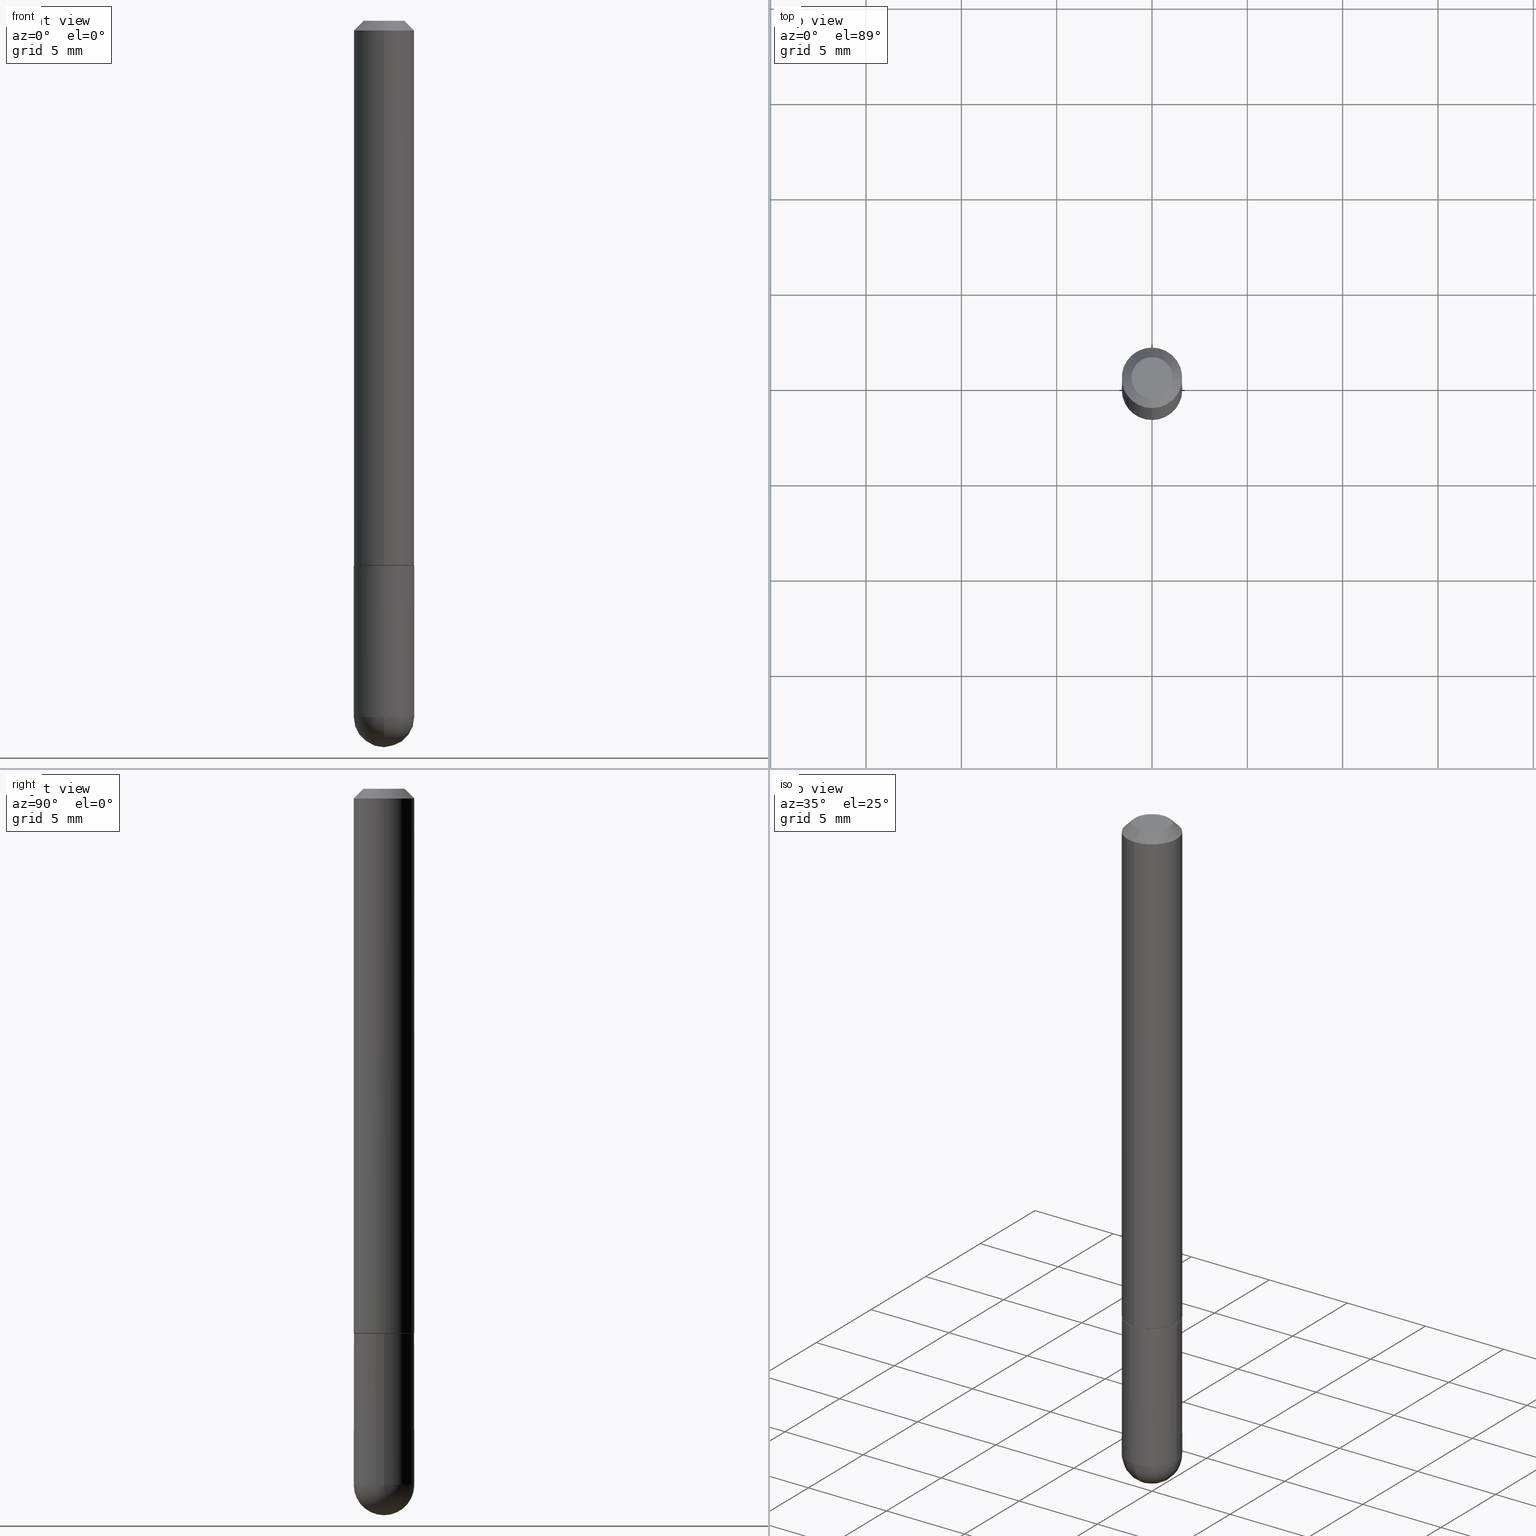
[diagram: canonical four-view strip — front | top / right | iso, engineering-drawing reading convention]
A machine part, canonical four-view strip (front | top / right | iso — engineering-drawing reading convention). The complete STEP part file that produces these views, byte-faithful:
ISO-10303-21;
HEADER;
FILE_DESCRIPTION (( 'STEP AP203' ),
    '1' );
FILE_NAME ('31168.STEP',
    '2024-02-21T16:50:14',
    ( '' ),
    ( '' ),
    'SwSTEP 2.0',
    'SolidWorks 2023',
    '' );
FILE_SCHEMA (( 'CONFIG_CONTROL_DESIGN' ));
ENDSEC;

DATA;
#1 = CIRCLE ( 'NONE', #389, 0.06249999999999995143 ) ;
#2 = DIRECTION ( 'NONE',  ( -6.982962677686265922E-15, -1.000000000000000000, 4.442029257990673709E-15 ) ) ;
#3 = CC_DESIGN_PERSON_AND_ORGANIZATION_ASSIGNMENT ( #120, #253, ( #270 ) ) ;
#4 = CARTESIAN_POINT ( 'NONE',  ( -7.443031093115869579E-45, 1.044789095463218177E-30, 3.018036600584200558E-16 ) ) ;
#5 = DIRECTION ( 'NONE',  ( -2.466183177392588152E-29, 3.461817180285283687E-15, 1.000000000000000000 ) ) ;
#6 = CIRCLE ( 'NONE', #140, 0.06250000000000005551 ) ;
#7 = EDGE_CURVE ( 'NONE', #189, #362, #144, .T. ) ;
#8 = FACE_OUTER_BOUND ( 'NONE', #245, .T. ) ;
#9 = APPROVAL ( #224, 'UNSPECIFIED' ) ;
#10 = ADVANCED_FACE ( 'NONE', ( #366 ), #310, .T. ) ;
#11 = CARTESIAN_POINT ( 'NONE',  ( 2.751152406958278111E-29, -3.927916506198538435E-15, -1.124999999999999778 ) ) ;
#12 = VERTEX_POINT ( 'NONE', #412 ) ;
#13 = FACE_OUTER_BOUND ( 'NONE', #213, .T. ) ;
#14 = ORIENTED_EDGE ( 'NONE', *, *, #132, .T. ) ;
#15 =( NAMED_UNIT ( * ) PLANE_ANGLE_UNIT ( ) SI_UNIT ( $, .RADIAN. ) );
#16 = EDGE_CURVE ( 'NONE', #294, #335, #121, .T. ) ;
#17 = ORIENTED_EDGE ( 'NONE', *, *, #244, .T. ) ;
#18 = CARTESIAN_POINT ( 'NONE',  ( 2.774456074566661636E-29, -3.894544327820944098E-15, -1.124999999999999778 ) ) ;
#19 = ORIENTED_EDGE ( 'NONE', *, *, #321, .F. ) ;
#20 = ADVANCED_FACE ( 'NONE', ( #58 ), #407, .F. ) ;
#21 = DIRECTION ( 'NONE',  ( -2.445468806185136597E-29, 3.491481338843145583E-15, 1.000000000000000000 ) ) ;
#22 = ADVANCED_FACE ( 'NONE', ( #314 ), #281, .T. ) ;
#23 = VECTOR ( 'NONE', #299, 39.37007874015748143 ) ;
#24 = ORIENTED_EDGE ( 'NONE', *, *, #388, .T. ) ;
#25 = COORDINATED_UNIVERSAL_TIME_OFFSET ( 5, 0, .BEHIND. ) ;
#26 = EDGE_CURVE ( 'NONE', #242, #202, #198, .T. ) ;
#27 = DIRECTION ( 'NONE',  ( 1.000000000000000000, -6.982962677686268288E-15, 0.000000000000000000 ) ) ;
#28 = DATE_AND_TIME ( #401, #174 ) ;
#29 = CONICAL_SURFACE ( 'NONE', #225, 0.06149999999999997830, 0.7853981633975849475 ) ;
#30 = PERSON_AND_ORGANIZATION ( #267, #295 ) ;
#31 = DIRECTION ( 'NONE',  ( 2.438088387897960049E-29, -3.491481338843145188E-15, -1.000000000000000000 ) ) ;
#32 = PERSON_AND_ORGANIZATION_ROLE ( 'creator' ) ;
#33 = CARTESIAN_POINT ( 'NONE',  ( 4.932366354785193785E-31, -6.923634360570589906E-17, -0.02000000000000006981 ) ) ;
#34 = EDGE_CURVE ( 'NONE', #196, #300, #127, .T. ) ;
#35 = LINE ( 'NONE', #382, #181 ) ;
#36 = CYLINDRICAL_SURFACE ( 'NONE', #106, 0.06250000000000000000 ) ;
#37 = EDGE_LOOP ( 'NONE', ( #204, #333, #110, #306 ) ) ;
#38 = DIRECTION ( 'NONE',  ( -7.105427357601001859E-15, -1.000000000000000000, 0.000000000000000000 ) ) ;
#39 = DIRECTION ( 'NONE',  ( -2.466183177392588152E-29, 3.461817180285283687E-15, 1.000000000000000000 ) ) ;
#40 = AXIS2_PLACEMENT_3D ( 'NONE', #71, #72, #353 ) ;
#41 =( GEOMETRIC_REPRESENTATION_CONTEXT ( 3 ) GLOBAL_UNCERTAINTY_ASSIGNED_CONTEXT ( ( #60 ) ) GLOBAL_UNIT_ASSIGNED_CONTEXT ( ( #79, #15, #77 ) ) REPRESENTATION_CONTEXT ( 'NONE', 'WORKASPACE' ) );
#42 = LINE ( 'NONE', #203, #337 ) ;
#43 = ORIENTED_EDGE ( 'NONE', *, *, #328, .T. ) ;
#44 = ADVANCED_BREP_SHAPE_REPRESENTATION ( '31168', ( #103, #54, #391 ), #41 ) ;
#45 = ADVANCED_FACE ( 'NONE', ( #149 ), #90, .T. ) ;
#46 = LINE ( 'NONE', #176, #23 ) ;
#47 = AXIS2_PLACEMENT_3D ( 'NONE', #33, #5, #228 ) ;
#48 = ORIENTED_EDGE ( 'NONE', *, *, #231, .T. ) ;
#49 = CC_DESIGN_DATE_AND_TIME_ASSIGNMENT ( #57, #125, ( #323 ) ) ;
#50 = DIRECTION ( 'NONE',  ( 6.982962677686265922E-15, 1.000000000000000000, -4.370956789862807739E-15 ) ) ;
#51 = ORIENTED_EDGE ( 'NONE', *, *, #7, .T. ) ;
#52 = SPHERICAL_SURFACE ( 'NONE', #207, 0.06250000000000018041 ) ;
#53 = EDGE_LOOP ( 'NONE', ( #48, #254, #327, #19 ) ) ;
#54 = MANIFOLD_SOLID_BREP ( 'Body-Move/Copy2[2]', #309 ) ;
#55 = EDGE_LOOP ( 'NONE', ( #390, #269 ) ) ;
#56 = CIRCLE ( 'NONE', #317, 0.06249999999999995143 ) ;
#57 = DATE_AND_TIME ( #94, #147 ) ;
#58 = FACE_OUTER_BOUND ( 'NONE', #55, .T. ) ;
#59 = ORIENTED_EDGE ( 'NONE', *, *, #244, .F. ) ;
#60 = UNCERTAINTY_MEASURE_WITH_UNIT (LENGTH_MEASURE( 1.000000000000000082E-05 ), #79, 'distance_accuracy_value', 'NONE');
#61 = DIRECTION ( 'NONE',  ( 0.000000000000000000, 0.000000000000000000, 1.000000000000000000 ) ) ;
#62 = PERSON_AND_ORGANIZATION ( #267, #295 ) ;
#63 = EDGE_CURVE ( 'NONE', #364, #329, #117, .T. ) ;
#64 = PERSON_AND_ORGANIZATION ( #267, #295 ) ;
#65 = CARTESIAN_POINT ( 'NONE',  ( 3.515361408891134418E-29, -5.019004424587023131E-15, -1.437500000000000222 ) ) ;
#66 = CC_DESIGN_DATE_AND_TIME_ASSIGNMENT ( #188, #280, ( #102 ) ) ;
#67 = CARTESIAN_POINT ( 'NONE',  ( 3.515361408891134418E-29, -5.019004424587023131E-15, -1.437500000000000222 ) ) ;
#68 = APPROVAL ( #313, 'UNSPECIFIED' ) ;
#69 = DIRECTION ( 'NONE',  ( -2.466183177392588152E-29, 3.461817180285283687E-15, 1.000000000000000000 ) ) ;
#70 = DIRECTION ( 'NONE',  ( -2.466183177392588152E-29, 3.461817180285283687E-15, 1.000000000000000000 ) ) ;
#71 = CARTESIAN_POINT ( 'NONE',  ( 3.184241630977247611E-29, -5.493186792727071849E-15, -1.437500000000000000 ) ) ;
#72 = DIRECTION ( 'NONE',  ( 1.000000000000000000, -6.982962677686265922E-15, 4.883557194083112340E-29 ) ) ;
#73 = AXIS2_PLACEMENT_3D ( 'NONE', #409, #148, #272 ) ;
#74 = CONICAL_SURFACE ( 'NONE', #383, 0.06249999999999995143, 0.7853981633974473908 ) ;
#75 = LINE ( 'NONE', #172, #369 ) ;
#76 = ORIENTED_EDGE ( 'NONE', *, *, #63, .F. ) ;
#77 =( NAMED_UNIT ( * ) SI_UNIT ( $, .STERADIAN. ) SOLID_ANGLE_UNIT ( ) );
#78 = ORIENTED_EDGE ( 'NONE', *, *, #384, .T. ) ;
#79 =( CONVERSION_BASED_UNIT ( 'INCH', #293 ) LENGTH_UNIT ( ) NAMED_UNIT ( #305 ) );
#80 = CLOSED_SHELL ( 'NONE', ( #22, #45, #297, #20, #279 ) ) ;
#81 = ORIENTED_EDGE ( 'NONE', *, *, #151, .T. ) ;
#82 = AXIS2_PLACEMENT_3D ( 'NONE', #98, #289, #260 ) ;
#83 = CARTESIAN_POINT ( 'NONE',  ( 4.364351673553917187E-16, 0.06249999999999988204, -0.02000000000000028491 ) ) ;
#84 = EDGE_LOOP ( 'NONE', ( #138, #237, #331, #124, #210 ) ) ;
#85 = DIRECTION ( 'NONE',  ( -6.982962677686265922E-15, -1.000000000000000000, 3.483106191921938315E-15 ) ) ;
#86 = EDGE_LOOP ( 'NONE', ( #367, #95, #265, #158 ) ) ;
#87 = CALENDAR_DATE ( 2024, 21, 2 ) ;
#88 = CIRCLE ( 'NONE', #187, 0.04249999999999961448 ) ;
#89 = CC_DESIGN_SECURITY_CLASSIFICATION ( #323, ( #270 ) ) ;
#90 = SPHERICAL_SURFACE ( 'NONE', #368, 0.06250000000000018041 ) ;
#91 = ORIENTED_EDGE ( 'NONE', *, *, #206, .F. ) ;
#92 = APPROVAL_DATE_TIME ( #373, #68 ) ;
#93 = DIRECTION ( 'NONE',  ( -4.851104656540959542E-15, -0.7071067811865493491, -0.7071067811865457964 ) ) ;
#94 = CALENDAR_DATE ( 2024, 21, 2 ) ;
#95 = ORIENTED_EDGE ( 'NONE', *, *, #217, .T. ) ;
#96 = CC_DESIGN_APPROVAL ( #68, ( #270 ) ) ;
#97 = CARTESIAN_POINT ( 'NONE',  ( 4.405364961712898701E-16, 0.06149999999999608558, -1.125000000000000222 ) ) ;
#98 = CARTESIAN_POINT ( 'NONE',  ( 2.967759138016636432E-16, 0.04249999999999961448, 3.774599867086833598E-18 ) ) ;
#99 = CARTESIAN_POINT ( 'NONE',  ( 0.06250000000000001388, -4.364351673553930105E-15, -1.124999999999999778 ) ) ;
#100 = LOCAL_TIME ( 11, 50, 14.00000000000000000, #25 ) ;
#101 = FACE_OUTER_BOUND ( 'NONE', #273, .T. ) ;
#102 = PRODUCT_DEFINITION ( 'UNKNOWN', '', #270, #319 ) ;
#103 = MANIFOLD_SOLID_BREP ( 'Body-Move/Copy2[1]', #80 ) ;
#104 = DIRECTION ( 'NONE',  ( 1.000000000000000000, -6.982962677686267499E-15, 4.876176775795936353E-29 ) ) ;
#105 = CARTESIAN_POINT ( 'NONE',  ( 3.339755826017505008E-29, -5.707577355157432999E-15, -1.500000000000000222 ) ) ;
#106 = AXIS2_PLACEMENT_3D ( 'NONE', #352, #285, #136 ) ;
#107 = CIRCLE ( 'NONE', #339, 0.06149999999999997830 ) ;
#108 = VERTEX_POINT ( 'NONE', #97 ) ;
#109 = DIRECTION ( 'NONE',  ( 1.000000000000000000, -6.982962677686268288E-15, 0.000000000000000000 ) ) ;
#110 = ORIENTED_EDGE ( 'NONE', *, *, #63, .T. ) ;
#111 = CARTESIAN_POINT ( 'NONE',  ( 2.774456074566661636E-29, -3.894544327820944098E-15, -1.124999999999999778 ) ) ;
#112 = ORIENTED_EDGE ( 'NONE', *, *, #231, .F. ) ;
#113 = CARTESIAN_POINT ( 'NONE',  ( -4.364351673553642565E-16, -0.06250000000000394129, -1.123999999999999888 ) ) ;
#114 = DIRECTION ( 'NONE',  ( -1.000000000000000000, 6.982962677686265922E-15, -4.883557194083112340E-29 ) ) ;
#115 = APPROVAL_ROLE ( '' ) ;
#116 = ORIENTED_EDGE ( 'NONE', *, *, #16, .F. ) ;
#117 = LINE ( 'NONE', #126, #230 ) ;
#118 = VECTOR ( 'NONE', #186, 39.37007874015748143 ) ;
#119 = CONICAL_SURFACE ( 'NONE', #235, 0.06249999999999995143, 0.7853981633974473908 ) ;
#120 = PERSON_AND_ORGANIZATION ( #267, #295 ) ;
#121 = LINE ( 'NONE', #222, #118 ) ;
#122 = APPROVAL_ROLE ( '' ) ;
#123 = CARTESIAN_POINT ( 'NONE',  ( 2.751152406958278111E-29, -3.927916506198538435E-15, -1.124999999999999778 ) ) ;
#124 = ORIENTED_EDGE ( 'NONE', *, *, #315, .F. ) ;
#125 = DATE_TIME_ROLE ( 'classification_date' ) ;
#126 = CARTESIAN_POINT ( 'NONE',  ( -4.294522046776775027E-16, -0.06150000000000387101, -1.124999999999999556 ) ) ;
#127 = CIRCLE ( 'NONE', #404, 0.06250000000000001388 ) ;
#128 = AXIS2_PLACEMENT_3D ( 'NONE', #386, #320, #38 ) ;
#129 = FACE_OUTER_BOUND ( 'NONE', #155, .T. ) ;
#130 = DIRECTION ( 'NONE',  ( 1.000000000000000000, -6.982962677686268288E-15, 0.000000000000000000 ) ) ;
#131 = CARTESIAN_POINT ( 'NONE',  ( 4.364351673554256397E-16, 0.06249999999999480971, -1.437500000000000444 ) ) ;
#132 = EDGE_CURVE ( 'NONE', #335, #362, #191, .T. ) ;
#133 = EDGE_CURVE ( 'NONE', #263, #242, #1, .T. ) ;
#134 = AXIS2_PLACEMENT_3D ( 'NONE', #183, #31, #402 ) ;
#135 = CIRCLE ( 'NONE', #128, 0.06250000000000018041 ) ;
#136 = DIRECTION ( 'NONE',  ( -6.982962677686265922E-15, -1.000000000000000000, 3.461817180285283292E-15 ) ) ;
#137 = DIRECTION ( 'NONE',  ( -2.445468806185136597E-29, 3.491481338843145583E-15, 1.000000000000000000 ) ) ;
#138 = ORIENTED_EDGE ( 'NONE', *, *, #26, .T. ) ;
#139 = CARTESIAN_POINT ( 'NONE',  ( 4.932366354785193785E-31, -6.923634360570589906E-17, -0.02000000000000006981 ) ) ;
#140 = AXIS2_PLACEMENT_3D ( 'NONE', #232, #200, #316 ) ;
#141 = EDGE_CURVE ( 'NONE', #202, #300, #257, .T. ) ;
#142 = DIRECTION ( 'NONE',  ( -6.982962677686265133E-15, -1.000000000000000000, 4.370956789862817205E-15 ) ) ;
#143 =( LENGTH_UNIT ( ) NAMED_UNIT ( * ) SI_UNIT ( $, .METRE. ) );
#144 = LINE ( 'NONE', #340, #336 ) ;
#145 = PLANE ( 'NONE',  #250 ) ;
#146 = VERTEX_POINT ( 'NONE', #105 ) ;
#147 = LOCAL_TIME ( 11, 50, 14.00000000000000000, #408 ) ;
#148 = DIRECTION ( 'NONE',  ( -2.445468806185136597E-29, 3.491481338843145583E-15, 1.000000000000000000 ) ) ;
#149 = FACE_OUTER_BOUND ( 'NONE', #86, .T. ) ;
#150 = PERSON_AND_ORGANIZATION_ROLE ( 'design_owner' ) ;
#151 = EDGE_CURVE ( 'NONE', #189, #165, #238, .T. ) ;
#152 = ORIENTED_EDGE ( 'NONE', *, *, #217, .F. ) ;
#153 = LOCAL_TIME ( 11, 50, 14.00000000000000000, #338 ) ;
#154 = APPROVAL_DATE_TIME ( #28, #284 ) ;
#155 = EDGE_LOOP ( 'NONE', ( #152, #177, #283, #344 ) ) ;
#156 = PERSON_AND_ORGANIZATION ( #267, #295 ) ;
#157 = DIRECTION ( 'NONE',  ( -2.466183177392588152E-29, 3.461817180285283687E-15, 1.000000000000000000 ) ) ;
#158 = ORIENTED_EDGE ( 'NONE', *, *, #26, .F. ) ;
#159 = FACE_OUTER_BOUND ( 'NONE', #357, .T. ) ;
#160 = CIRCLE ( 'NONE', #256, 0.06249999999999995143 ) ;
#161 = DIRECTION ( 'NONE',  ( -2.445468806185136877E-29, 3.491481338843145188E-15, 1.000000000000000000 ) ) ;
#162 = CARTESIAN_POINT ( 'NONE',  ( -0.06249999999999995143, -4.029371255542718167E-15, -1.437500000000000222 ) ) ;
#163 = ADVANCED_FACE ( 'NONE', ( #168 ), #29, .T. ) ;
#164 = PRODUCT ( '31168', '31168', '', ( #400 ) ) ;
#165 = VERTEX_POINT ( 'NONE', #261 ) ;
#166 = DIRECTION ( 'NONE',  ( 6.982962677686265922E-15, 1.000000000000000000, -3.483106191921938315E-15 ) ) ;
#167 = AXIS2_PLACEMENT_3D ( 'NONE', #236, #332, #142 ) ;
#168 = FACE_OUTER_BOUND ( 'NONE', #37, .T. ) ;
#169 = CARTESIAN_POINT ( 'NONE',  ( -4.294522046776775027E-16, -0.06150000000000387101, -1.124999999999999556 ) ) ;
#170 = EDGE_CURVE ( 'NONE', #146, #242, #205, .T. ) ;
#171 = DIRECTION ( 'NONE',  ( -2.466183177392588152E-29, 3.461817180285283687E-15, 1.000000000000000000 ) ) ;
#172 = CARTESIAN_POINT ( 'NONE',  ( 0.06249999999999997918, -4.364351673553915708E-16, 3.047610484872459170E-30 ) ) ;
#173 = ADVANCED_FACE ( 'NONE', ( #101 ), #74, .T. ) ;
#174 = LOCAL_TIME ( 11, 50, 14.00000000000000000, #255 ) ;
#175 = ORIENTED_EDGE ( 'NONE', *, *, #141, .F. ) ;
#176 = CARTESIAN_POINT ( 'NONE',  ( 4.369837824924891195E-16, 0.06149999999999608558, -1.125000000000000222 ) ) ;
#177 = ORIENTED_EDGE ( 'NONE', *, *, #170, .T. ) ;
#178 = DIRECTION ( 'NONE',  ( -6.982962677686265922E-15, -1.000000000000000000, 4.442029257990673709E-15 ) ) ;
#179 = EDGE_LOOP ( 'NONE', ( #248, #371 ) ) ;
#180 = ORIENTED_EDGE ( 'NONE', *, *, #356, .T. ) ;
#181 = VECTOR ( 'NONE', #197, 39.37007874015748143 ) ;
#182 = PERSON_AND_ORGANIZATION ( #267, #295 ) ;
#183 = CARTESIAN_POINT ( 'NONE',  ( 4.364351673554192795E-16, 0.06249999999999608646, -1.125000000000000222 ) ) ;
#184 = PERSON_AND_ORGANIZATION ( #267, #295 ) ;
#185 = DIRECTION ( 'NONE',  ( 6.982962677686265922E-15, 1.000000000000000000, -4.370956789862807739E-15 ) ) ;
#186 = DIRECTION ( 'NONE',  ( -2.466183177392588152E-29, 3.461817180285283687E-15, 1.000000000000000000 ) ) ;
#187 = AXIS2_PLACEMENT_3D ( 'NONE', #346, #380, #229 ) ;
#188 = DATE_AND_TIME ( #87, #100 ) ;
#189 = VERTEX_POINT ( 'NONE', #258 ) ;
#190 = CARTESIAN_POINT ( 'NONE',  ( 2.774456074566661636E-29, -3.894544327820944098E-15, -1.124999999999999778 ) ) ;
#191 = CIRCLE ( 'NONE', #47, 0.06249999999999995143 ) ;
#192 = CIRCLE ( 'NONE', #398, 0.06149999999999997830 ) ;
#193 = FACE_OUTER_BOUND ( 'NONE', #276, .T. ) ;
#194 = CC_DESIGN_PERSON_AND_ORGANIZATION_ASSIGNMENT ( #411, #374, ( #323 ) ) ;
#195 = CYLINDRICAL_SURFACE ( 'NONE', #290, 0.06249999999999997918 ) ;
#196 = VERTEX_POINT ( 'NONE', #99 ) ;
#197 = DIRECTION ( 'NONE',  ( 4.937700262164543309E-15, 0.7071067811865444641, -0.7071067811865506814 ) ) ;
#198 = CIRCLE ( 'NONE', #303, 0.06249999999999995143 ) ;
#199 = APPROVAL_PERSON_ORGANIZATION ( #182, #9, #115 ) ;
#200 = DIRECTION ( 'NONE',  ( -2.466183177392588152E-29, 3.461817180285283687E-15, 1.000000000000000000 ) ) ;
#201 = DIRECTION ( 'NONE',  ( -6.982962677686265922E-15, -1.000000000000000000, 3.461817180285283687E-15 ) ) ;
#202 = VERTEX_POINT ( 'NONE', #162 ) ;
#203 = CARTESIAN_POINT ( 'NONE',  ( -4.364351673553916201E-16, -0.06250000000000000000, 2.163635737678302058E-16 ) ) ;
#204 = ORIENTED_EDGE ( 'NONE', *, *, #381, .F. ) ;
#205 = CIRCLE ( 'NONE', #40, 0.06250000000000018041 ) ;
#206 = EDGE_CURVE ( 'NONE', #165, #189, #88, .T. ) ;
#207 = AXIS2_PLACEMENT_3D ( 'NONE', #399, #114, #50 ) ;
#208 = DIRECTION ( 'NONE',  ( -2.466183177392588152E-29, 3.461817180285283687E-15, 1.000000000000000000 ) ) ;
#209 = APPLICATION_CONTEXT ( 'configuration controlled 3d designs of mechanical parts and assemblies' ) ;
#210 = ORIENTED_EDGE ( 'NONE', *, *, #133, .T. ) ;
#211 = APPROVAL_DATE_TIME ( #218, #9 ) ;
#212 = CC_DESIGN_PERSON_AND_ORGANIZATION_ASSIGNMENT ( #64, #32, ( #102 ) ) ;
#213 = EDGE_LOOP ( 'NONE', ( #298, #91, #17, #14 ) ) ;
#214 = VECTOR ( 'NONE', #161, 39.37007874015748143 ) ;
#215 = DIRECTION ( 'NONE',  ( 1.000000000000000000, -6.982962677686269077E-15, 0.000000000000000000 ) ) ;
#216 = AXIS2_PLACEMENT_3D ( 'NONE', #361, #208, #85 ) ;
#217 = EDGE_CURVE ( 'NONE', #146, #12, #135, .T. ) ;
#218 = DATE_AND_TIME ( #375, #324 ) ;
#219 = CARTESIAN_POINT ( 'NONE',  ( 3.184241630977247611E-29, -5.493186792727071849E-15, -1.437500000000000000 ) ) ;
#220 = ORIENTED_EDGE ( 'NONE', *, *, #351, .F. ) ;
#221 = SECURITY_CLASSIFICATION_LEVEL ( 'unclassified' ) ;
#222 = CARTESIAN_POINT ( 'NONE',  ( 4.440892098500625669E-16, 0.06250000000000000000, -2.163635737678302058E-16 ) ) ;
#223 = CC_DESIGN_PERSON_AND_ORGANIZATION_ASSIGNMENT ( #156, #370, ( #270 ) ) ;
#224 = APPROVAL_STATUS ( 'not_yet_approved' ) ;
#225 = AXIS2_PLACEMENT_3D ( 'NONE', #190, #70, #2 ) ;
#226 = CIRCLE ( 'NONE', #216, 0.06249999999999995143 ) ;
#227 = DIRECTION ( 'NONE',  ( -6.982962677686265922E-15, -1.000000000000000000, 3.461817180285283292E-15 ) ) ;
#228 = DIRECTION ( 'NONE',  ( -6.982962677686265922E-15, -1.000000000000000000, 3.483106191921938315E-15 ) ) ;
#229 = DIRECTION ( 'NONE',  ( -6.982962677686266711E-15, -1.000000000000000000, 3.461817180285284476E-15 ) ) ;
#230 = VECTOR ( 'NONE', #377, 39.37007874015748143 ) ;
#231 = EDGE_CURVE ( 'NONE', #329, #294, #6, .T. ) ;
#232 = CARTESIAN_POINT ( 'NONE',  ( 2.771989891389269485E-29, -3.891082510640658844E-15, -1.124000000000000110 ) ) ;
#233 = CARTESIAN_POINT ( 'NONE',  ( 4.440892098500769143E-16, 0.06249999999999615585, -1.124000000000000332 ) ) ;
#234 = CARTESIAN_POINT ( 'NONE',  ( 4.932366354785193785E-31, -6.923634360570589906E-17, -0.02000000000000006981 ) ) ;
#235 = AXIS2_PLACEMENT_3D ( 'NONE', #139, #325, #264 ) ;
#236 = CARTESIAN_POINT ( 'NONE',  ( 2.771989891389269485E-29, -3.891082510640658844E-15, -1.124000000000000110 ) ) ;
#237 = ORIENTED_EDGE ( 'NONE', *, *, #141, .T. ) ;
#238 = CIRCLE ( 'NONE', #277, 0.04249999999999961448 ) ;
#239 = DIRECTION ( 'NONE',  ( -6.982962677686265922E-15, -1.000000000000000000, 4.442029257990673709E-15 ) ) ;
#240 = AXIS2_PLACEMENT_3D ( 'NONE', #347, #39, #259 ) ;
#241 = CC_DESIGN_APPROVAL ( #9, ( #323 ) ) ;
#242 = VERTEX_POINT ( 'NONE', #131 ) ;
#243 = DIRECTION ( 'NONE',  ( 1.000000000000000000, -6.982962677686269077E-15, 0.000000000000000000 ) ) ;
#244 = EDGE_CURVE ( 'NONE', #165, #335, #35, .T. ) ;
#245 = EDGE_LOOP ( 'NONE', ( #175, #43, #24, #403, #220 ) ) ;
#246 = APPLICATION_PROTOCOL_DEFINITION ( 'international standard', 'config_control_design', 1994, #360 ) ;
#247 = DIRECTION ( 'NONE',  ( -2.445468806185136597E-29, 3.491481338843145583E-15, 1.000000000000000000 ) ) ;
#248 = ORIENTED_EDGE ( 'NONE', *, *, #384, .F. ) ;
#249 = DIRECTION ( 'NONE',  ( 1.000000000000000000, 0.000000000000000000, 0.000000000000000000 ) ) ;
#250 = AXIS2_PLACEMENT_3D ( 'NONE', #111, #296, #201 ) ;
#251 = ADVANCED_FACE ( 'NONE', ( #159 ), #311, .T. ) ;
#252 = CARTESIAN_POINT ( 'NONE',  ( 0.000000000000000000, 0.000000000000000000, 0.000000000000000000 ) ) ;
#253 = PERSON_AND_ORGANIZATION_ROLE ( 'design_supplier' ) ;
#254 = ORIENTED_EDGE ( 'NONE', *, *, #16, .T. ) ;
#255 = COORDINATED_UNIVERSAL_TIME_OFFSET ( 5, 0, .BEHIND. ) ;
#256 = AXIS2_PLACEMENT_3D ( 'NONE', #326, #21, #358 ) ;
#257 = LINE ( 'NONE', #288, #214 ) ;
#258 = CARTESIAN_POINT ( 'NONE',  ( -3.601761448830035670E-16, -0.04249999999999961448, 4.489308902205433395E-16 ) ) ;
#259 = DIRECTION ( 'NONE',  ( -6.982962677686265922E-15, -1.000000000000000000, 4.442029257990673709E-15 ) ) ;
#260 = DIRECTION ( 'NONE',  ( 6.982962677686265922E-15, 1.000000000000000000, -3.461817180285283687E-15 ) ) ;
#261 = CARTESIAN_POINT ( 'NONE',  ( 3.666055405785276810E-16, 0.04249999999999961448, 1.546764298962968461E-16 ) ) ;
#262 = DIRECTION ( 'NONE',  ( -2.445468806185136877E-29, 3.491481338843145188E-15, 1.000000000000000000 ) ) ;
#263 = VERTEX_POINT ( 'NONE', #318 ) ;
#264 = DIRECTION ( 'NONE',  ( 6.982962677686265922E-15, 1.000000000000000000, -3.483106191921938315E-15 ) ) ;
#265 = ORIENTED_EDGE ( 'NONE', *, *, #328, .F. ) ;
#266 = CARTESIAN_POINT ( 'NONE',  ( 2.774456074566661636E-29, -3.894544327820944098E-15, -1.124999999999999778 ) ) ;
#267 = PERSON ( 'UNSPECIFIED', 'UNSPECIFIED', 'UNSPECIFIED', ('UNSPECIFIED'), ('UNSPECIFIED'), ('UNSPECIFIED') ) ;
#268 = FACE_OUTER_BOUND ( 'NONE', #179, .T. ) ;
#269 = ORIENTED_EDGE ( 'NONE', *, *, #351, .T. ) ;
#270 = PRODUCT_DEFINITION_FORMATION_WITH_SPECIFIED_SOURCE ( 'ANY', '', #164, .NOT_KNOWN. ) ;
#271 = ADVANCED_FACE ( 'NONE', ( #193 ), #36, .T. ) ;
#272 = DIRECTION ( 'NONE',  ( 1.000000000000000000, -6.982962677686267499E-15, 4.876176775795936353E-29 ) ) ;
#273 = EDGE_LOOP ( 'NONE', ( #302, #51, #180, #59 ) ) ;
#274 = CARTESIAN_POINT ( 'NONE',  ( 0.000000000000000000, 0.000000000000000000, 0.000000000000000000 ) ) ;
#275 = ADVANCED_FACE ( 'NONE', ( #322 ), #291, .F. ) ;
#276 = EDGE_LOOP ( 'NONE', ( #116, #410, #359, #341 ) ) ;
#277 = AXIS2_PLACEMENT_3D ( 'NONE', #4, #69, #379 ) ;
#278 = DIRECTION ( 'NONE',  ( -2.445468806185136597E-29, 3.491481338843145583E-15, 1.000000000000000000 ) ) ;
#279 = ADVANCED_FACE ( 'NONE', ( #8 ), #195, .T. ) ;
#280 = DATE_TIME_ROLE ( 'creation_date' ) ;
#281 = CYLINDRICAL_SURFACE ( 'NONE', #73, 0.06249999999999997918 ) ;
#282 = DIRECTION ( 'NONE',  ( -1.000000000000000000, 6.982962677686265922E-15, -4.883557194083112340E-29 ) ) ;
#283 = ORIENTED_EDGE ( 'NONE', *, *, #133, .F. ) ;
#284 = APPROVAL ( #342, 'UNSPECIFIED' ) ;
#285 = DIRECTION ( 'NONE',  ( -2.466183177392588152E-29, 3.461817180285283687E-15, 1.000000000000000000 ) ) ;
#286 = AXIS2_PLACEMENT_3D ( 'NONE', #11, #393, #243 ) ;
#287 = DIRECTION ( 'NONE',  ( -2.445468806185136597E-29, 3.491481338843145583E-15, 1.000000000000000000 ) ) ;
#288 = CARTESIAN_POINT ( 'NONE',  ( -0.06249999999999997918, 4.440892098500624683E-16, -3.074334431409315413E-30 ) ) ;
#289 = DIRECTION ( 'NONE',  ( 2.466183177392587871E-29, -3.461817180285283687E-15, -1.000000000000000000 ) ) ;
#290 = AXIS2_PLACEMENT_3D ( 'NONE', #385, #137, #104 ) ;
#291 = PLANE ( 'NONE',  #82 ) ;
#292 = DIRECTION ( 'NONE',  ( -2.466183177392588152E-29, 3.461817180285283687E-15, 1.000000000000000000 ) ) ;
#293 = LENGTH_MEASURE_WITH_UNIT ( LENGTH_MEASURE( 0.02539999999999999897 ), #143 );
#294 = VERTEX_POINT ( 'NONE', #233 ) ;
#295 = ORGANIZATION ( 'UNSPECIFIED', 'UNSPECIFIED', '' ) ;
#296 = DIRECTION ( 'NONE',  ( -2.466183177392587871E-29, 3.461817180285283687E-15, 1.000000000000000000 ) ) ;
#297 = ADVANCED_FACE ( 'NONE', ( #129 ), #52, .T. ) ;
#298 = ORIENTED_EDGE ( 'NONE', *, *, #7, .F. ) ;
#299 = DIRECTION ( 'NONE',  ( 5.024295867788748699E-15, 0.7071067811866466046, 0.7071067811864484298 ) ) ;
#300 = VERTEX_POINT ( 'NONE', #396 ) ;
#301 = CARTESIAN_POINT ( 'NONE',  ( -4.287811248607198352E-16, -0.06250000000000001388, -0.01999999999999985123 ) ) ;
#302 = ORIENTED_EDGE ( 'NONE', *, *, #151, .F. ) ;
#303 = AXIS2_PLACEMENT_3D ( 'NONE', #65, #247, #27 ) ;
#304 = COORDINATED_UNIVERSAL_TIME_OFFSET ( 5, 0, .BEHIND. ) ;
#305 = DIMENSIONAL_EXPONENTS ( 1.000000000000000000, 0.000000000000000000, 0.000000000000000000, 0.000000000000000000, 0.000000000000000000, 0.000000000000000000, 0.000000000000000000 ) ;
#306 = ORIENTED_EDGE ( 'NONE', *, *, #345, .F. ) ;
#307 = PRODUCT_RELATED_PRODUCT_CATEGORY ( 'detail', '', ( #164 ) ) ;
#308 = APPLICATION_PROTOCOL_DEFINITION ( 'international standard', 'config_control_design', 1994, #209 ) ;
#309 = CLOSED_SHELL ( 'NONE', ( #251, #10, #173, #312, #271, #163, #372, #275 ) ) ;
#310 = CYLINDRICAL_SURFACE ( 'NONE', #348, 0.06250000000000000000 ) ;
#311 = CONICAL_SURFACE ( 'NONE', #240, 0.06149999999999997830, 0.7853981633975849475 ) ;
#312 = ADVANCED_FACE ( 'NONE', ( #13 ), #119, .T. ) ;
#313 = APPROVAL_STATUS ( 'not_yet_approved' ) ;
#314 = FACE_OUTER_BOUND ( 'NONE', #84, .T. ) ;
#315 = EDGE_CURVE ( 'NONE', #263, #196, #75, .T. ) ;
#316 = DIRECTION ( 'NONE',  ( -6.982962677686265133E-15, -1.000000000000000000, 4.370956789862817205E-15 ) ) ;
#317 = AXIS2_PLACEMENT_3D ( 'NONE', #355, #363, #109 ) ;
#318 = CARTESIAN_POINT ( 'NONE',  ( 0.06249999999999995143, -4.909895632748172453E-15, -1.437500000000000222 ) ) ;
#319 = DESIGN_CONTEXT ( 'detailed design', #360, 'design' ) ;
#320 = DIRECTION ( 'NONE',  ( -1.000000000000000000, 7.105427357601001070E-15, -4.926315508542082329E-29 ) ) ;
#321 = EDGE_CURVE ( 'NONE', #329, #362, #42, .T. ) ;
#322 = FACE_OUTER_BOUND ( 'NONE', #397, .T. ) ;
#323 = SECURITY_CLASSIFICATION ( '', '', #221 ) ;
#324 = LOCAL_TIME ( 11, 50, 14.00000000000000000, #304 ) ;
#325 = DIRECTION ( 'NONE',  ( 2.466183177392588152E-29, -3.461817180285283687E-15, -1.000000000000000000 ) ) ;
#326 = CARTESIAN_POINT ( 'NONE',  ( 3.515361408891134418E-29, -5.019004424587023131E-15, -1.437500000000000222 ) ) ;
#327 = ORIENTED_EDGE ( 'NONE', *, *, #356, .F. ) ;
#328 = EDGE_CURVE ( 'NONE', #202, #12, #56, .T. ) ;
#329 = VERTEX_POINT ( 'NONE', #113 ) ;
#330 = APPROVAL_PERSON_ORGANIZATION ( #62, #68, #122 ) ;
#331 = ORIENTED_EDGE ( 'NONE', *, *, #34, .F. ) ;
#332 = DIRECTION ( 'NONE',  ( -2.466183177392588152E-29, 3.461817180285283687E-15, 1.000000000000000000 ) ) ;
#333 = ORIENTED_EDGE ( 'NONE', *, *, #350, .T. ) ;
#334 = SHAPE_DEFINITION_REPRESENTATION ( #376, #44 ) ;
#335 = VERTEX_POINT ( 'NONE', #83 ) ;
#336 = VECTOR ( 'NONE', #93, 39.37007874015748143 ) ;
#337 = VECTOR ( 'NONE', #171, 39.37007874015748143 ) ;
#338 = COORDINATED_UNIVERSAL_TIME_OFFSET ( 5, 0, .BEHIND. ) ;
#339 = AXIS2_PLACEMENT_3D ( 'NONE', #18, #292, #178 ) ;
#340 = CARTESIAN_POINT ( 'NONE',  ( -4.287811248607198352E-16, -0.06250000000000001388, -0.01999999999999985123 ) ) ;
#341 = ORIENTED_EDGE ( 'NONE', *, *, #132, .F. ) ;
#342 = APPROVAL_STATUS ( 'not_yet_approved' ) ;
#343 = CIRCLE ( 'NONE', #167, 0.06250000000000005551 ) ;
#344 = ORIENTED_EDGE ( 'NONE', *, *, #388, .F. ) ;
#345 = EDGE_CURVE ( 'NONE', #294, #329, #343, .T. ) ;
#346 = CARTESIAN_POINT ( 'NONE',  ( -7.443031093115869579E-45, 1.044789095463218177E-30, 3.018036600584200558E-16 ) ) ;
#347 = CARTESIAN_POINT ( 'NONE',  ( 2.774456074566661636E-29, -3.894544327820944098E-15, -1.124999999999999778 ) ) ;
#348 = AXIS2_PLACEMENT_3D ( 'NONE', #274, #157, #227 ) ;
#349 = APPROVAL_PERSON_ORGANIZATION ( #30, #284, #365 ) ;
#350 = EDGE_CURVE ( 'NONE', #108, #364, #192, .T. ) ;
#351 = EDGE_CURVE ( 'NONE', #300, #196, #378, .T. ) ;
#352 = CARTESIAN_POINT ( 'NONE',  ( 0.000000000000000000, 0.000000000000000000, 0.000000000000000000 ) ) ;
#353 = DIRECTION ( 'NONE',  ( 6.982962677686266711E-15, 1.000000000000000000, 0.000000000000000000 ) ) ;
#354 = DIRECTION ( 'NONE',  ( 2.466183177392588152E-29, -3.461817180285283687E-15, -1.000000000000000000 ) ) ;
#355 = CARTESIAN_POINT ( 'NONE',  ( 3.515361408891134418E-29, -5.019004424587023131E-15, -1.437500000000000222 ) ) ;
#356 = EDGE_CURVE ( 'NONE', #362, #335, #226, .T. ) ;
#357 = EDGE_LOOP ( 'NONE', ( #78, #394, #112, #76 ) ) ;
#358 = DIRECTION ( 'NONE',  ( 1.000000000000000000, -6.982962677686268288E-15, 0.000000000000000000 ) ) ;
#359 = ORIENTED_EDGE ( 'NONE', *, *, #321, .T. ) ;
#360 = APPLICATION_CONTEXT ( 'configuration controlled 3d designs of mechanical parts and assemblies' ) ;
#361 = CARTESIAN_POINT ( 'NONE',  ( 4.932366354785193785E-31, -6.923634360570589906E-17, -0.02000000000000006981 ) ) ;
#362 = VERTEX_POINT ( 'NONE', #301 ) ;
#363 = DIRECTION ( 'NONE',  ( -2.445468806185136597E-29, 3.491481338843145583E-15, 1.000000000000000000 ) ) ;
#364 = VERTEX_POINT ( 'NONE', #169 ) ;
#365 = APPROVAL_ROLE ( '' ) ;
#366 = FACE_OUTER_BOUND ( 'NONE', #53, .T. ) ;
#367 = ORIENTED_EDGE ( 'NONE', *, *, #170, .F. ) ;
#368 = AXIS2_PLACEMENT_3D ( 'NONE', #219, #282, #185 ) ;
#369 = VECTOR ( 'NONE', #262, 39.37007874015748143 ) ;
#370 = PERSON_AND_ORGANIZATION_ROLE ( 'creator' ) ;
#371 = ORIENTED_EDGE ( 'NONE', *, *, #350, .F. ) ;
#372 = ADVANCED_FACE ( 'NONE', ( #268 ), #145, .F. ) ;
#373 = DATE_AND_TIME ( #406, #153 ) ;
#374 = PERSON_AND_ORGANIZATION_ROLE ( 'classification_officer' ) ;
#375 = CALENDAR_DATE ( 2024, 21, 2 ) ;
#376 = PRODUCT_DEFINITION_SHAPE ( 'NONE', 'NONE',  #102 ) ;
#377 = DIRECTION ( 'NONE',  ( -4.937700262165222518E-15, -0.7071067811866417196, 0.7071067811864533148 ) ) ;
#378 = CIRCLE ( 'NONE', #286, 0.06250000000000001388 ) ;
#379 = DIRECTION ( 'NONE',  ( -6.982962677686266711E-15, -1.000000000000000000, 3.461817180285284476E-15 ) ) ;
#380 = DIRECTION ( 'NONE',  ( -2.466183177392588152E-29, 3.461817180285283687E-15, 1.000000000000000000 ) ) ;
#381 = EDGE_CURVE ( 'NONE', #108, #294, #46, .T. ) ;
#382 = CARTESIAN_POINT ( 'NONE',  ( 4.364351673553917187E-16, 0.06249999999999988204, -0.02000000000000028491 ) ) ;
#383 = AXIS2_PLACEMENT_3D ( 'NONE', #234, #354, #166 ) ;
#384 = EDGE_CURVE ( 'NONE', #364, #108, #107, .T. ) ;
#385 = CARTESIAN_POINT ( 'NONE',  ( 0.000000000000000000, 0.000000000000000000, 0.000000000000000000 ) ) ;
#386 = CARTESIAN_POINT ( 'NONE',  ( 3.184241630977247611E-29, -5.493186792727071849E-15, -1.437500000000000000 ) ) ;
#387 = DIRECTION ( 'NONE',  ( -2.466183177392588152E-29, 3.461817180285283687E-15, 1.000000000000000000 ) ) ;
#388 = EDGE_CURVE ( 'NONE', #12, #263, #160, .T. ) ;
#389 = AXIS2_PLACEMENT_3D ( 'NONE', #67, #287, #130 ) ;
#390 = ORIENTED_EDGE ( 'NONE', *, *, #34, .T. ) ;
#391 = AXIS2_PLACEMENT_3D ( 'NONE', #252, #61, #249 ) ;
#392 = ORIENTED_EDGE ( 'NONE', *, *, #206, .T. ) ;
#393 = DIRECTION ( 'NONE',  ( -2.445468806185136597E-29, 3.491481338843145583E-15, 1.000000000000000000 ) ) ;
#394 = ORIENTED_EDGE ( 'NONE', *, *, #381, .T. ) ;
#395 = CC_DESIGN_PERSON_AND_ORGANIZATION_ASSIGNMENT ( #184, #150, ( #164 ) ) ;
#396 = CARTESIAN_POINT ( 'NONE',  ( -0.06250000000000001388, -4.029371255542718167E-15, -1.124999999999999778 ) ) ;
#397 = EDGE_LOOP ( 'NONE', ( #392, #81 ) ) ;
#398 = AXIS2_PLACEMENT_3D ( 'NONE', #266, #387, #239 ) ;
#399 = CARTESIAN_POINT ( 'NONE',  ( 3.184241630977247611E-29, -5.493186792727071849E-15, -1.437500000000000000 ) ) ;
#400 = MECHANICAL_CONTEXT ( 'NONE', #209, 'mechanical' ) ;
#401 = CALENDAR_DATE ( 2024, 21, 2 ) ;
#402 = DIRECTION ( 'NONE',  ( -1.000000000000000000, 6.982962677686265922E-15, -4.876176775795935793E-29 ) ) ;
#403 = ORIENTED_EDGE ( 'NONE', *, *, #315, .T. ) ;
#404 = AXIS2_PLACEMENT_3D ( 'NONE', #123, #278, #215 ) ;
#405 = CC_DESIGN_APPROVAL ( #284, ( #102 ) ) ;
#406 = CALENDAR_DATE ( 2024, 21, 2 ) ;
#407 = PLANE ( 'NONE',  #134 ) ;
#408 = COORDINATED_UNIVERSAL_TIME_OFFSET ( 5, 0, .BEHIND. ) ;
#409 = CARTESIAN_POINT ( 'NONE',  ( 0.000000000000000000, 0.000000000000000000, 0.000000000000000000 ) ) ;
#410 = ORIENTED_EDGE ( 'NONE', *, *, #345, .T. ) ;
#411 = PERSON_AND_ORGANIZATION ( #267, #295 ) ;
#412 = CARTESIAN_POINT ( 'NONE',  ( -4.440892098500294840E-16, -0.06250000000000532907, -1.437500000000000000 ) ) ;
ENDSEC;
END-ISO-10303-21;
